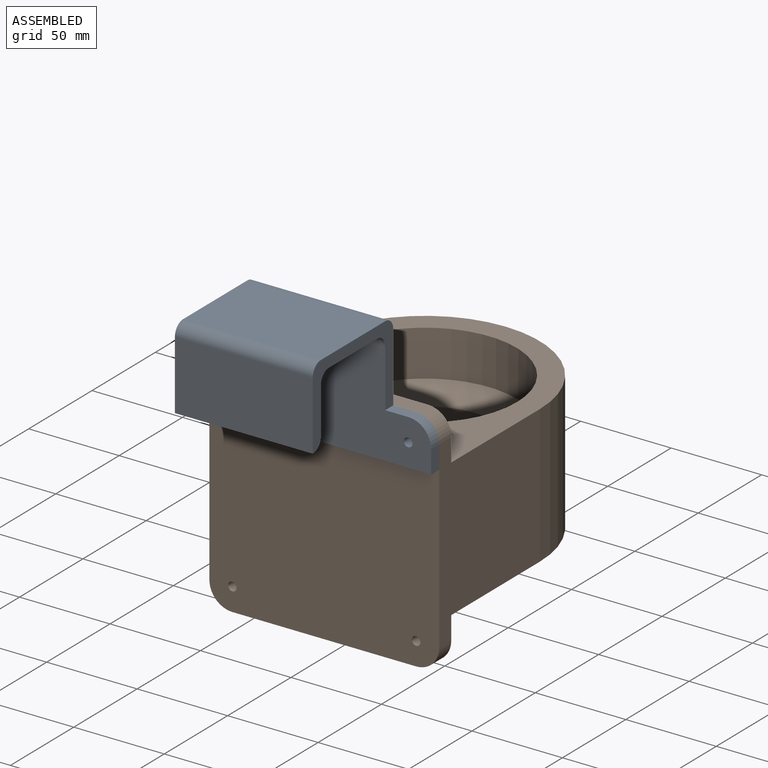
[diagram: assembled view]
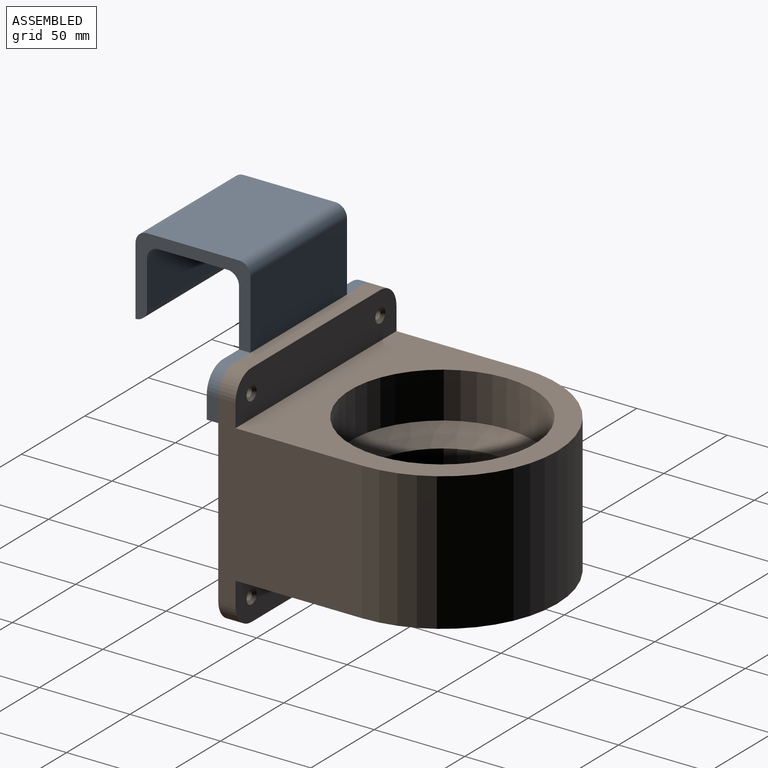
[diagram: assembled view, second angle]
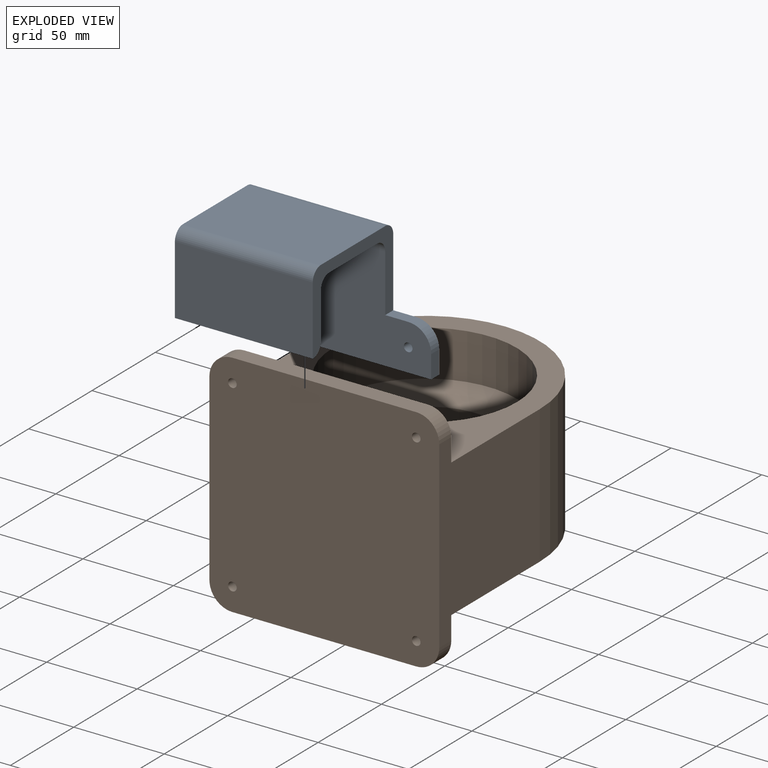
[diagram: exploded view]
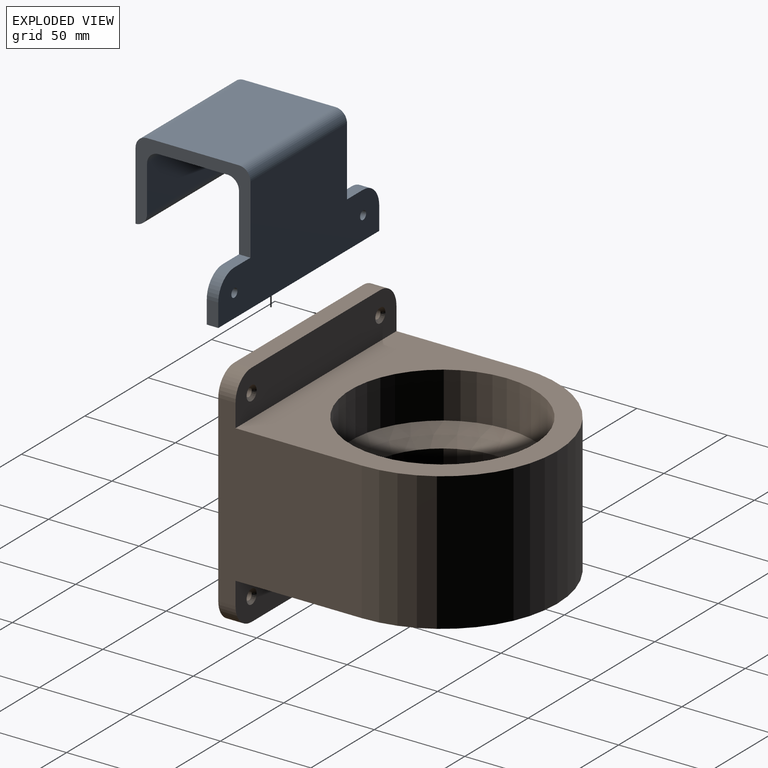
[diagram: exploded view, second angle]
ASSEMBLY  parts=2 mates=3
PART A: 22 faces, bbox 127x63.5x69.9 mm
  f0: plane 12.7x6.35mm, normal (0,0,1), area 80.6mm2, adj f7,f8,f10,f16
  f1: plane 127x6.35mm, normal (0,0,-1), area 806.5mm2, adj f2,f5,f7,f8
  f2: plane 12.7x6.35mm, normal (1,0,0), area 80.6mm2, adj f1,f7,f8,f9
  f3: plane 12.7x6.35mm, normal (0,0,1), area 80.6mm2, adj f7,f8,f9,f15
  f4: cylinder r=2.38mm len=6.35mm, axis (0,1,0), area 95mm2, adj f7,f8
  f5: plane 12.7x6.35mm, normal (-1,0,0), area 80.6mm2, adj f1,f7,f8,f10
  f6: cylinder r=2.38mm len=6.35mm, axis (0,1,0), area 95mm2, adj f7,f8
  f7: plane 127x57.15mm, normal (0,-1,0), area 5540.3mm2, adj f0,f1,f2,f3,f4,f5,f6,f9
  f8: plane 127x63.5mm, normal (0,1,0), area 6024.2mm2, adj f0,f1,f2,f3,f4,f5,f6,f9
  f9: cylinder r=12.7mm len=12.7mm, axis (0,-1,0), area 126.7mm2, adj f2,f3,f7,f8
  f10: cylinder r=12.7mm len=12.7mm, axis (0,1,0), area 126.7mm2, adj f0,f5,f7,f8
  f11: plane 76.2x50.8mm, normal (0,0,1), area 3871mm2, adj f15,f16,f17,f18
  f12: plane 76.2x38.1mm, normal (0,-1,0), area 2903.2mm2, adj f15,f16,f18,f19
  f13: plane 76.2x25.4mm, normal (0,1,0), area 1935.5mm2, adj f15,f16,f19,f20
  f14: plane 76.2x38.1mm, normal (0,0,-1), area 2903.2mm2, adj f15,f16,f20,f21
  f15: plane 63.5x44.45mm, normal (1,0,0), area 878.4mm2, adj f3,f7,f8,f11,f12,f13,f14,f17
  f16: plane 63.5x44.45mm, normal (-1,0,0), area 878.4mm2, adj f0,f7,f8,f11,f12,f13,f14,f17
  f17: cylinder r=6.35mm len=76.2mm, axis (-1,0,0), area 760.1mm2, adj f8,f11,f15,f16
  f18: cylinder r=6.35mm len=76.2mm, axis (-1,0,0), area 760.1mm2, adj f11,f12,f15,f16
  f19: cylinder r=6.35mm len=76.2mm, axis (-1,0,0), area 760.1mm2, adj f12,f13,f15,f16
  f20: cylinder r=6.35mm len=76.2mm, axis (1,0,0), area 760.1mm2, adj f13,f14,f15,f16
  f21: cylinder r=6.35mm len=76.2mm, axis (-1,0,0), area 760.1mm2, adj f7,f14,f15,f16
PART B: 25 faces, bbox 127x142.9x127 mm
  f0: plane 127x25.4mm, normal (0,-1,0), area 3057.6mm2, adj f3,f5,f7,f11,f13,f14,f23,f24
  f1: plane 127x25.4mm, normal (0,-1,0), area 3057.6mm2, adj f3,f5,f8,f12,f15,f16,f21,f22
  f2: plane 127x127mm, normal (0,1,0), area 15919.3mm2, adj f3,f5,f11,f12,f13,f14,f15,f16
  f3: plane 101.6x79.38mm, normal (-1,0,0), area 6290.3mm2, adj f0,f1,f2,f4,f7,f8,f13,f15
  f4: cylinder r=63.5mm len=127mm, axis (0,0,-1), area 15201.2mm2, adj f3,f5,f7,f8
  f5: plane 101.6x79.38mm, normal (1,0,0), area 6290.3mm2, adj f0,f1,f2,f4,f7,f8,f14,f16
  f6: cylinder r=50.8mm len=101.6mm, axis (0,0,-1), area 8107.3mm2, adj f7,f10
  f7: plane 133.35x127mm, normal (0,0,1), area 7097.5mm2, adj f0,f3,f4,f5,f6
  f8: plane 133.35x127mm, normal (0,0,-1), area 9852.7mm2, adj f1,f3,f4,f5,f9
  f9: cylinder r=41.27mm len=82.55mm, axis (0,0,-1), area 10704.2mm2, adj f8,f10
  f10: cone r=50.8mm half-angle=45deg, axis (0,0,1), area 3896.5mm2, adj f6,f9
  f11: plane 101.6x9.53mm, normal (0,0,1), area 967.7mm2, adj f0,f2,f13,f14
  f12: plane 101.6x9.53mm, normal (0,0,-1), area 967.7mm2, adj f1,f2,f15,f16
  f13: cylinder r=12.7mm len=12.7mm, axis (0,1,0), area 190mm2, adj f0,f2,f3,f11
  f14: cylinder r=12.7mm len=12.7mm, axis (0,1,0), area 190mm2, adj f0,f2,f5,f11
  f15: cylinder r=12.7mm len=12.7mm, axis (0,-1,0), area 190mm2, adj f1,f2,f3,f12
  f16: cylinder r=12.7mm len=12.7mm, axis (0,-1,0), area 190mm2, adj f1,f2,f5,f12
  f17: cylinder r=2.38mm len=7.94mm, axis (0,-1,0), area 118.8mm2, adj f2,f21
  f18: cylinder r=2.38mm len=7.94mm, axis (0,-1,0), area 118.8mm2, adj f2,f22
  f19: cylinder r=2.38mm len=7.94mm, axis (0,-1,0), area 118.8mm2, adj f2,f23
  f20: cylinder r=2.38mm len=7.94mm, axis (0,-1,0), area 118.8mm2, adj f2,f24
  f21: cone r=3.97mm half-angle=45deg, axis (0,-1,0), area 44.8mm2, adj f1,f17
  f22: cone r=2.38mm half-angle=45deg, axis (0,-1,0), area 44.8mm2, adj f1,f18
  f23: cone r=3.97mm half-angle=45deg, axis (0,-1,0), area 44.8mm2, adj f0,f19
  f24: cone r=2.38mm half-angle=45deg, axis (0,-1,0), area 44.8mm2, adj f0,f20
PLACE A t=(-55.61,-15.66,-153.59)mm
PLACE B rot(axis=(0,0,1),180deg) t=(-55.61,63.71,-242.49)mm
MATE cylindrical B.f13 <-> A.f6  axis (0,-1,0) through (-4.81,-15.66,-153.59)mm
MATE cylindrical B.f14 <-> A.f4  axis (0,-1,0) through (-106.41,-15.66,-153.59)mm
MATE planar B.f2 <-> A.f8  axis (0,-1,0) through (7.89,-15.66,-204.39)mm
